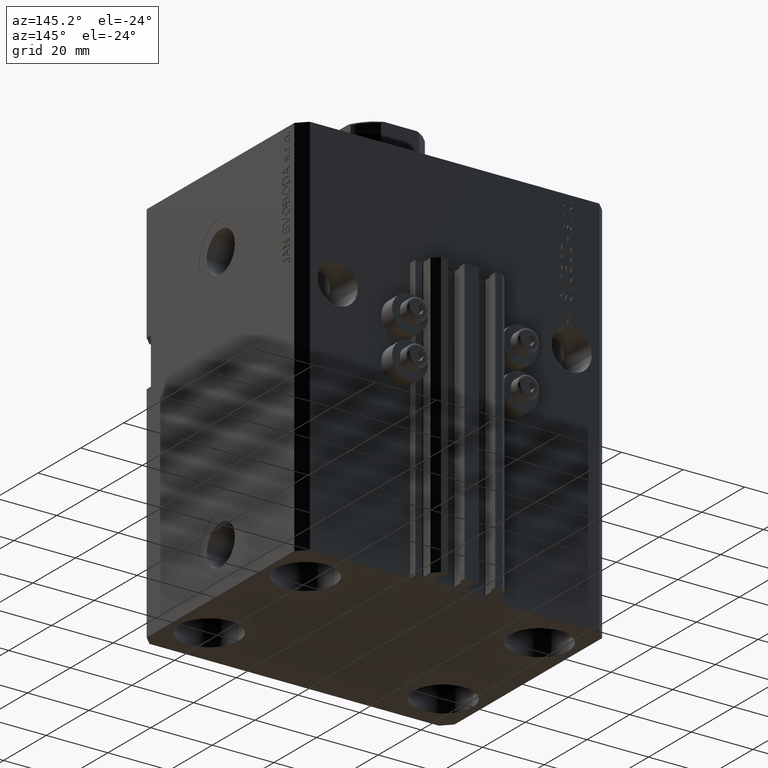
[diagram: clean part render]
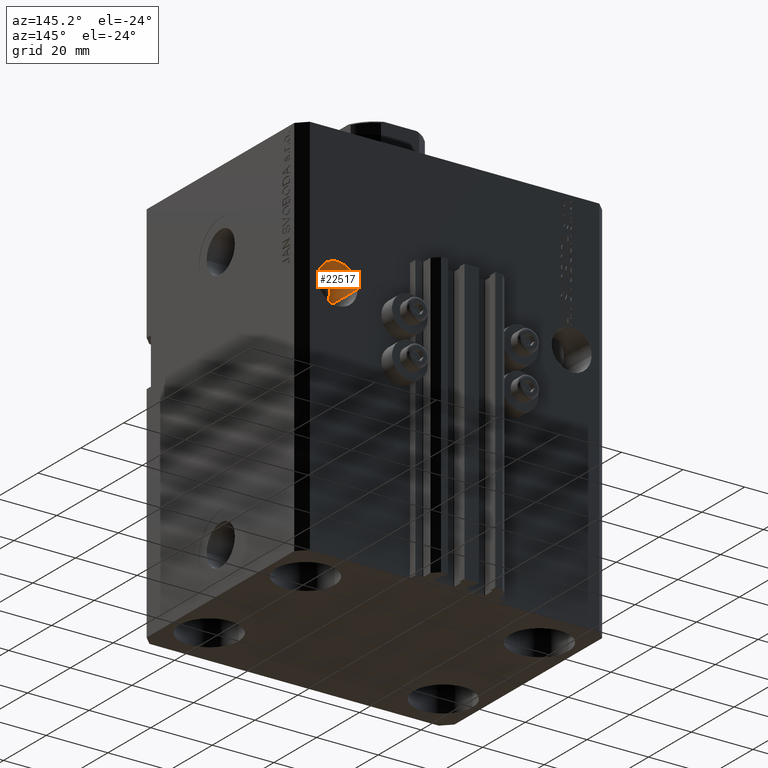
[diagram: same view with one face highlighted and labeled with its STEP entity id]
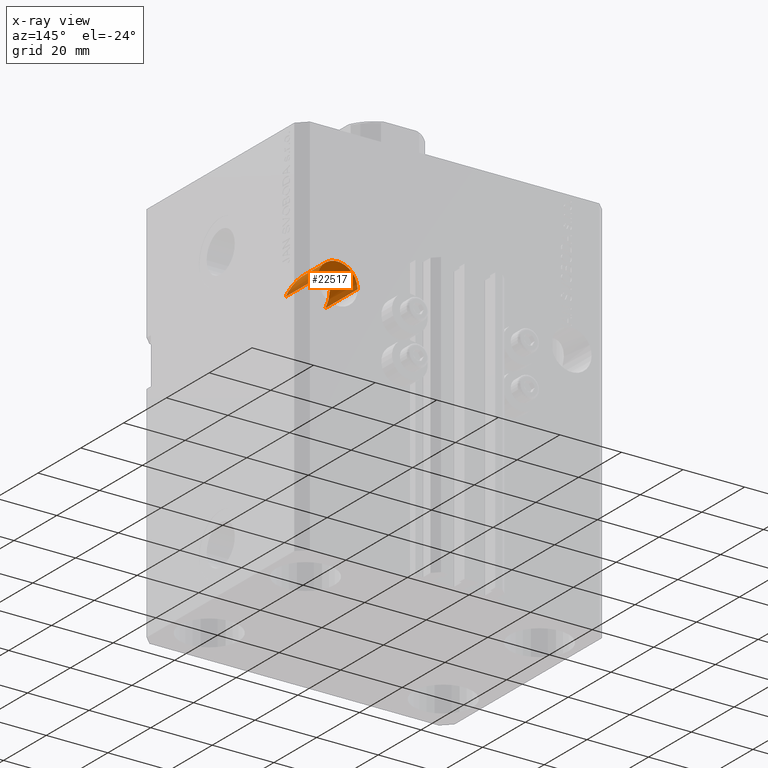
[diagram: x-ray of the same camera — body ghosted, the highlighted face saturated]
A machine part, auxiliary view. The second image highlights one B-rep face of the part: STEP entity #22517.
The next image is the same camera in x-ray: the body ghosted, the highlighted face saturated — about 0% of this face is hidden behind the body in this view.
In plain terms, the highlighted cylindrical surface (edge-blend (fillet) strip) has radius 6.5 mm, axis along (0, -1, 0).
Its self-contained STEP definition (entity closure, byte-faithful):
#728 = CARTESIAN_POINT ( 'NONE',  ( 31.50000000000000711, 37.49999999999999289, -45.00000000000000000 ) ) ;
#2483 = EDGE_CURVE ( 'NONE', #42496, #28929, #10919, .T. ) ;
#3064 = VECTOR ( 'NONE', #7539, 1000.000000000000000 ) ;
#3191 = DIRECTION ( 'NONE',  ( 1.101411730780568590E-16, -1.000000000000000000, -0.000000000000000000 ) ) ;
#5374 = DIRECTION ( 'NONE',  ( 7.381802025433175941E-17, 1.000000000000000000, -0.000000000000000000 ) ) ;
#6646 = DIRECTION ( 'NONE',  ( 1.101411730780568590E-16, -1.000000000000000000, -0.000000000000000000 ) ) ;
#6664 = VERTEX_POINT ( 'NONE', #728 ) ;
#6808 = DIRECTION ( 'NONE',  ( 1.000000000000000000, 0.000000000000000000, 0.000000000000000000 ) ) ;
#7367 = CARTESIAN_POINT ( 'NONE',  ( 31.50000000000000711, 22.50000000000001421, -45.00000000000000000 ) ) ;
#7539 = DIRECTION ( 'NONE',  ( 1.101411730780568590E-16, -1.000000000000000000, -0.000000000000000000 ) ) ;
#7617 =( BOUNDED_CURVE ( )  B_SPLINE_CURVE ( 3, ( #7367, #22057, #22765, #11214 ),
 .UNSPECIFIED., .F., .F. ) 
 B_SPLINE_CURVE_WITH_KNOTS ( ( 4, 4 ),
 ( 4.712388980384689674, 7.853981633974482790 ),
 .UNSPECIFIED. ) 
 CURVE ( )  GEOMETRIC_REPRESENTATION_ITEM ( )  RATIONAL_B_SPLINE_CURVE ( ( 1.000000000000000000, 0.3333333333333333703, 0.3333333333333333703, 1.000000000000000000 ) ) 
 REPRESENTATION_ITEM ( '' )  );
#8176 = AXIS2_PLACEMENT_3D ( 'NONE', #22619, #3191, #6808 ) ;
#10919 = LINE ( 'NONE', #44666, #3064 ) ;
#11214 = CARTESIAN_POINT ( 'NONE',  ( 44.50000000000000711, 22.50000000000001421, -45.00000000000000000 ) ) ;
#14307 = ORIENTED_EDGE ( 'NONE', *, *, #2483, .T. ) ;
#14358 = ORIENTED_EDGE ( 'NONE', *, *, #27032, .F. ) ;
#14808 = LINE ( 'NONE', #39688, #32953 ) ;
#17113 = CARTESIAN_POINT ( 'NONE',  ( 44.50000000000000711, 22.50000000000001421, -45.00000000000000000 ) ) ;
#21511 = CYLINDRICAL_SURFACE ( 'NONE', #8176, 6.499999999999999112 ) ;
#22057 = CARTESIAN_POINT ( 'NONE',  ( 31.50000000000000355, 35.50000000000000711, -32.00000000000000000 ) ) ;
#22517 = ADVANCED_FACE ( 'NONE', ( #47544 ), #21511, .F. ) ;
#22619 = CARTESIAN_POINT ( 'NONE',  ( 38.00000000000000711, 60.50000000000002842, -45.00000000000000000 ) ) ;
#22765 = CARTESIAN_POINT ( 'NONE',  ( 44.50000000000000711, 35.50000000000001421, -32.00000000000000000 ) ) ;
#22776 = ORIENTED_EDGE ( 'NONE', *, *, #39791, .F. ) ;
#27032 = EDGE_CURVE ( 'NONE', #6664, #37337, #14808, .T. ) ;
#28929 = VERTEX_POINT ( 'NONE', #17113 ) ;
#29792 = EDGE_CURVE ( 'NONE', #6664, #42496, #42326, .T. ) ;
#30531 = ORIENTED_EDGE ( 'NONE', *, *, #29792, .T. ) ;
#32267 = CARTESIAN_POINT ( 'NONE',  ( 44.50000000000000711, 37.49999999999999289, -45.00000000000000000 ) ) ;
#32953 = VECTOR ( 'NONE', #6646, 1000.000000000000000 ) ;
#34792 = DIRECTION ( 'NONE',  ( -1.000000000000000000, 0.000000000000000000, 0.000000000000000000 ) ) ;
#37337 = VERTEX_POINT ( 'NONE', #41921 ) ;
#38407 = CARTESIAN_POINT ( 'NONE',  ( 38.00000000000000711, 37.49999999999999289, -45.00000000000000000 ) ) ;
#38470 = AXIS2_PLACEMENT_3D ( 'NONE', #38407, #5374, #34792 ) ;
#39688 = CARTESIAN_POINT ( 'NONE',  ( 31.50000000000000711, 60.50000000000002842, -45.00000000000000000 ) ) ;
#39791 = EDGE_CURVE ( 'NONE', #37337, #28929, #7617, .T. ) ;
#41921 = CARTESIAN_POINT ( 'NONE',  ( 31.50000000000000711, 22.50000000000001421, -45.00000000000000000 ) ) ;
#42194 = EDGE_LOOP ( 'NONE', ( #14358, #30531, #14307, #22776 ) ) ;
#42326 = CIRCLE ( 'NONE', #38470, 6.499999999999999112 ) ;
#42496 = VERTEX_POINT ( 'NONE', #32267 ) ;
#44666 = CARTESIAN_POINT ( 'NONE',  ( 44.50000000000000711, 60.50000000000002842, -45.00000000000000000 ) ) ;
#47544 = FACE_OUTER_BOUND ( 'NONE', #42194, .T. ) ;